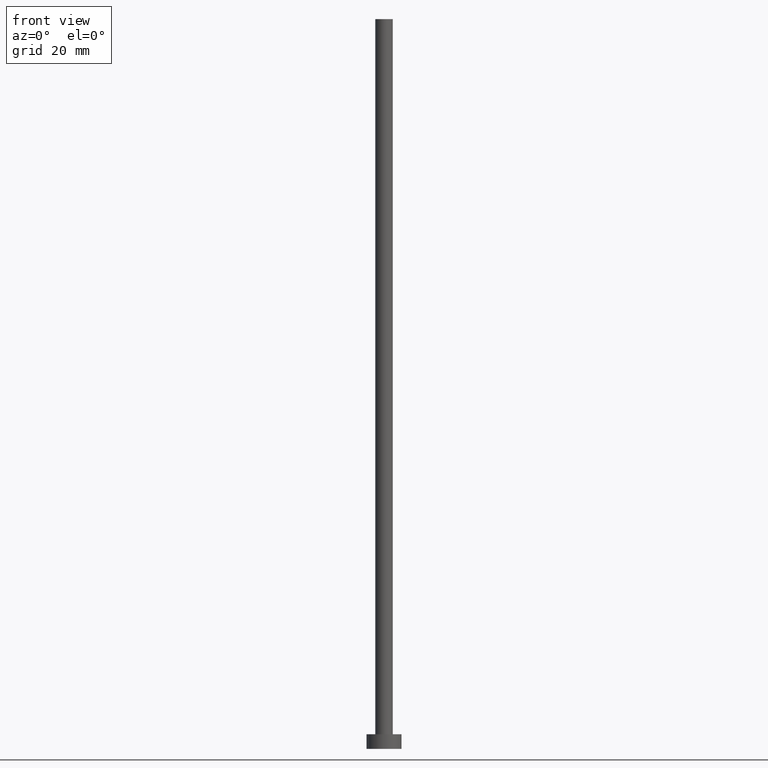
[diagram: clean part render]
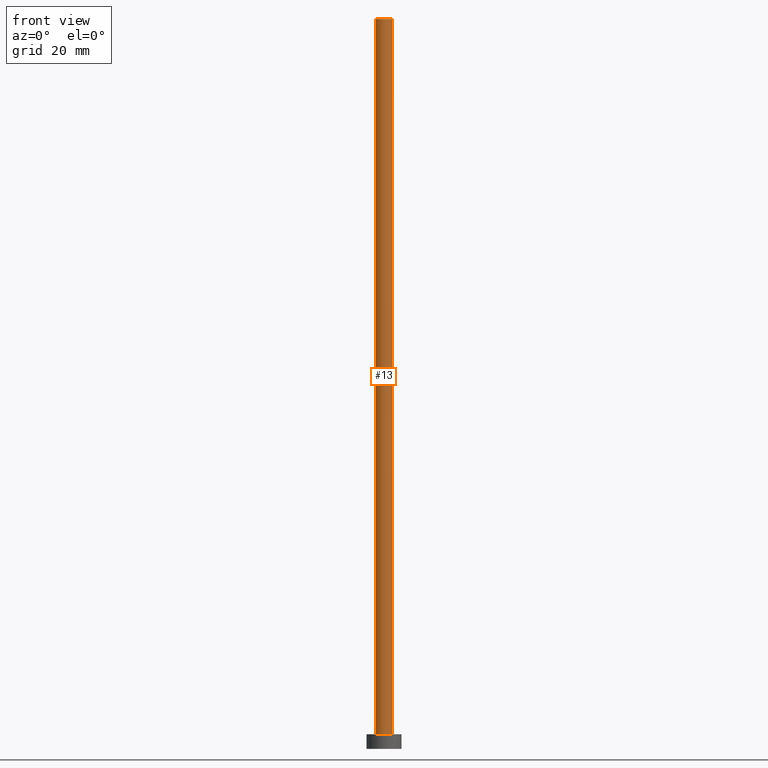
[diagram: same view with one face highlighted and labeled with its STEP entity id]
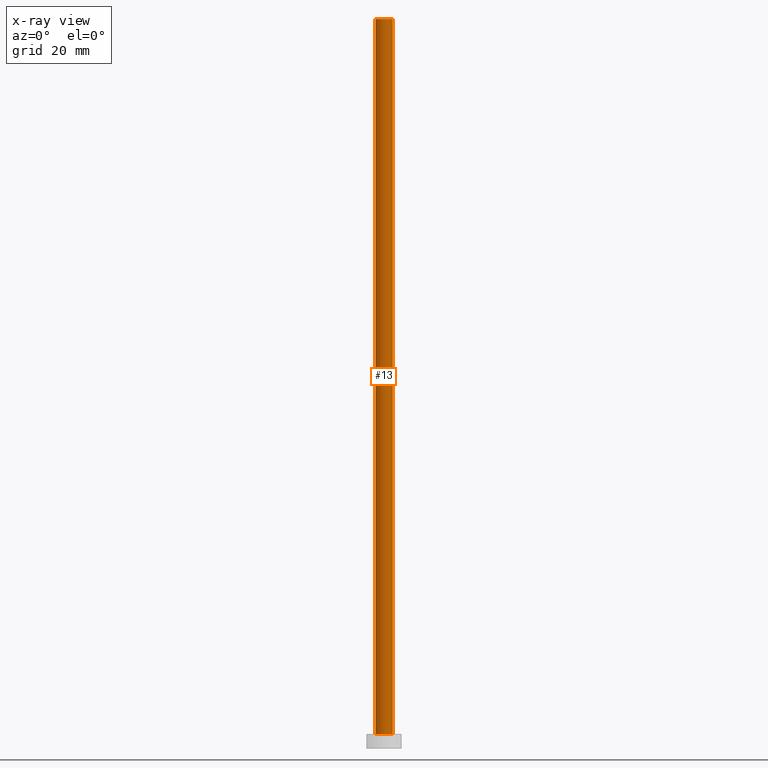
[diagram: x-ray of the same camera — body ghosted, the highlighted face saturated]
A machine part, front view. The second image highlights one B-rep face of the part: STEP entity #13.
The next image is the same camera in x-ray: the body ghosted, the highlighted face saturated — about 0% of this face is hidden behind the body in this view.
In plain terms, the highlighted cylindrical surface (edge-blend (fillet) strip) has radius 3 mm, axis along (-0, -0, -1).
Its self-contained STEP definition (entity closure, byte-faithful):
#13 = ADVANCED_FACE ( 'NONE', ( #182 ), #221, .T. ) ;
#14 = EDGE_CURVE ( 'NONE', #214, #237, #124, .T. ) ;
#20 = ORIENTED_EDGE ( 'NONE', *, *, #203, .F. ) ;
#26 = ORIENTED_EDGE ( 'NONE', *, *, #14, .T. ) ;
#28 = DIRECTION ( 'NONE',  ( -0.000000000000000000, -0.000000000000000000, -1.000000000000000000 ) ) ;
#33 = CIRCLE ( 'NONE', #227, 3.000000000000000444 ) ;
#37 = EDGE_LOOP ( 'NONE', ( #20, #43, #26, #153 ) ) ;
#43 = ORIENTED_EDGE ( 'NONE', *, *, #241, .F. ) ;
#44 = VECTOR ( 'NONE', #109, 1000.000000000000000 ) ;
#50 = CARTESIAN_POINT ( 'NONE',  ( 0.000000000000000000, 0.000000000000000000, 250.0000000000000000 ) ) ;
#57 = EDGE_CURVE ( 'NONE', #237, #231, #33, .T. ) ;
#65 = CARTESIAN_POINT ( 'NONE',  ( 3.000000000000000444, 3.673940397442060361E-16, 250.0000000000000000 ) ) ;
#78 = VECTOR ( 'NONE', #248, 1000.000000000000000 ) ;
#86 = AXIS2_PLACEMENT_3D ( 'NONE', #50, #232, #208 ) ;
#87 = CARTESIAN_POINT ( 'NONE',  ( 0.000000000000000000, 0.000000000000000000, 5.000000000000000000 ) ) ;
#88 = DIRECTION ( 'NONE',  ( 0.000000000000000000, 0.000000000000000000, 1.000000000000000000 ) ) ;
#108 = LINE ( 'NONE', #65, #44 ) ;
#109 = DIRECTION ( 'NONE',  ( -0.000000000000000000, -0.000000000000000000, -1.000000000000000000 ) ) ;
#111 = CIRCLE ( 'NONE', #86, 3.000000000000000444 ) ;
#124 = LINE ( 'NONE', #169, #78 ) ;
#153 = ORIENTED_EDGE ( 'NONE', *, *, #57, .T. ) ;
#159 = VERTEX_POINT ( 'NONE', #167 ) ;
#165 = DIRECTION ( 'NONE',  ( -1.000000000000000000, 0.000000000000000000, 0.000000000000000000 ) ) ;
#167 = CARTESIAN_POINT ( 'NONE',  ( 3.000000000000000444, 3.673940397442060361E-16, 250.0000000000000000 ) ) ;
#169 = CARTESIAN_POINT ( 'NONE',  ( -3.000000000000000444, 0.000000000000000000, 250.0000000000000000 ) ) ;
#182 = FACE_OUTER_BOUND ( 'NONE', #37, .T. ) ;
#187 = CARTESIAN_POINT ( 'NONE',  ( 3.000000000000000444, 3.673940397442060361E-16, 5.000000000000000000 ) ) ;
#189 = CARTESIAN_POINT ( 'NONE',  ( -3.000000000000000444, 0.000000000000000000, 250.0000000000000000 ) ) ;
#193 = AXIS2_PLACEMENT_3D ( 'NONE', #245, #28, #165 ) ;
#203 = EDGE_CURVE ( 'NONE', #159, #231, #108, .T. ) ;
#208 = DIRECTION ( 'NONE',  ( 1.000000000000000000, 0.000000000000000000, 0.000000000000000000 ) ) ;
#214 = VERTEX_POINT ( 'NONE', #189 ) ;
#220 = DIRECTION ( 'NONE',  ( 1.000000000000000000, 0.000000000000000000, 0.000000000000000000 ) ) ;
#221 = CYLINDRICAL_SURFACE ( 'NONE', #193, 3.000000000000000444 ) ;
#227 = AXIS2_PLACEMENT_3D ( 'NONE', #87, #88, #220 ) ;
#228 = CARTESIAN_POINT ( 'NONE',  ( -3.000000000000000444, 0.000000000000000000, 5.000000000000000000 ) ) ;
#231 = VERTEX_POINT ( 'NONE', #187 ) ;
#232 = DIRECTION ( 'NONE',  ( 0.000000000000000000, 0.000000000000000000, 1.000000000000000000 ) ) ;
#237 = VERTEX_POINT ( 'NONE', #228 ) ;
#241 = EDGE_CURVE ( 'NONE', #214, #159, #111, .T. ) ;
#245 = CARTESIAN_POINT ( 'NONE',  ( 0.000000000000000000, 0.000000000000000000, 250.0000000000000000 ) ) ;
#248 = DIRECTION ( 'NONE',  ( -0.000000000000000000, -0.000000000000000000, -1.000000000000000000 ) ) ;